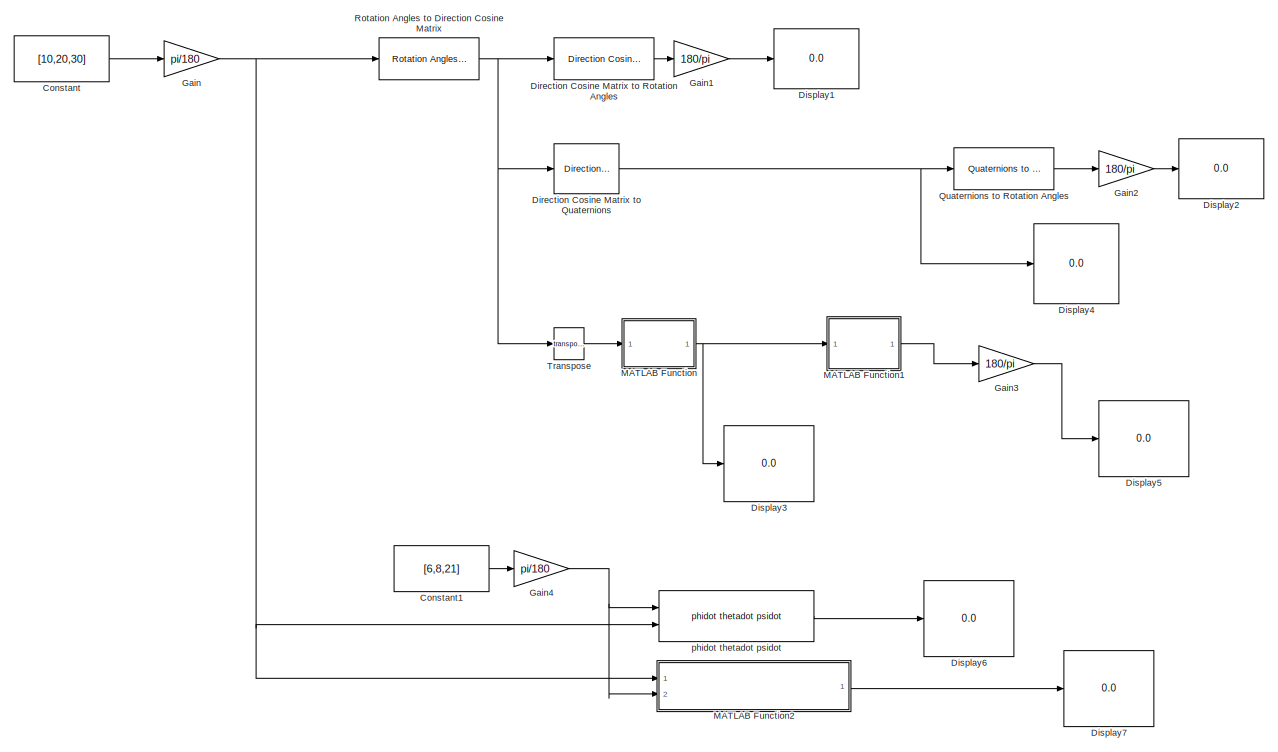
[diagram: root canvas - part 1/3, top left region]
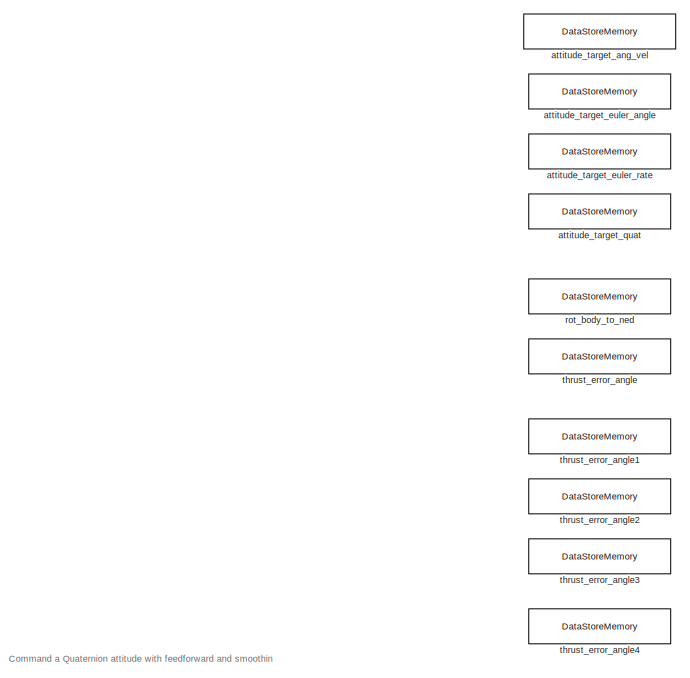
[diagram: root canvas - part 2/3, middle right region]
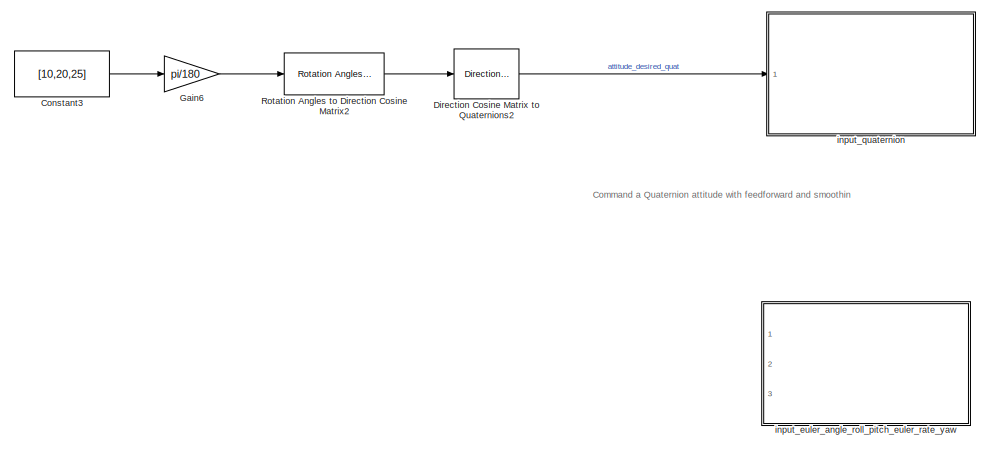
[diagram: root canvas - part 3/3, bottom center region]
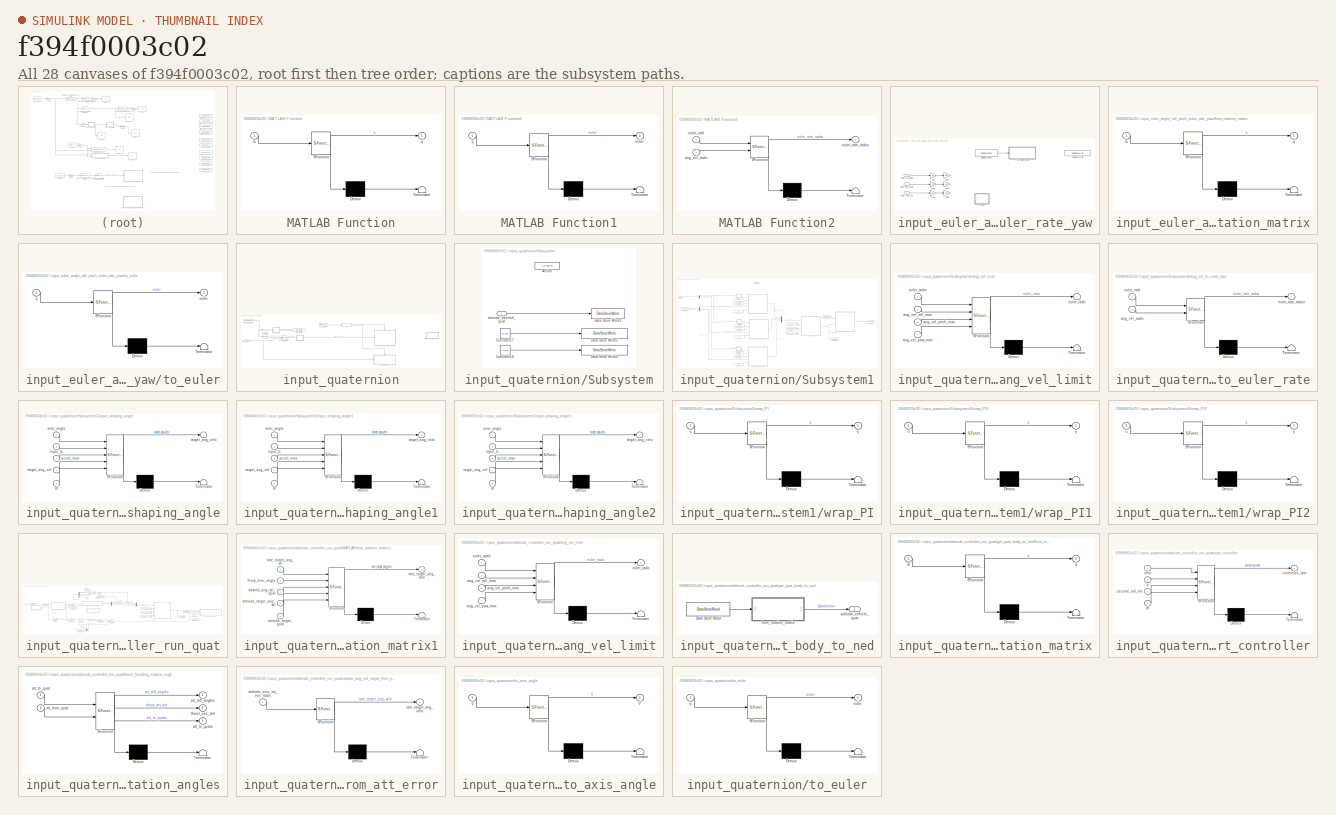
[diagram: thumbnail index - all 28 canvases of the model, root first then tree order]
MODEL slx_f394f0003c02
KIND model
CONFIG AbsTol = auto
CONFIG EnableMultiTasking = off
CONFIG FixedStep = auto
CONFIG MaxStep = auto
CONFIG MinStep = auto
CONFIG RelTol = 1e-3
CONFIG SampleTimeConstraint = Unconstrained
CONFIG Solver = VariableStepAuto
CONFIG SolverName = VariableStepAuto
CONFIG StartTime = 0.0
CONFIG StopTime = 10.0
BLOCK [Constant] Constant
  Value = [10,20,30]
BLOCK [Constant] Constant1
  Value = [6,8,21]
BLOCK [Constant] Constant3
  Value = [10,20,25]
BLOCK [Reference] Direction Cosine Matrix to Quaternions  REF=sharedtransform/Direction Cosine Matrix 
to Quaternions
  Ports = [1, 1]
  SourceBlock = sharedtransform/Direction Cosine Matrix \nto Quaternions
  SourceProductBaseCode = AE
  SourceProductName = Aerospace Blockset
  SourceType = DCM2Quaternion
BLOCK [Reference] Direction Cosine Matrix to Quaternions2  REF=sharedtransform/Direction Cosine Matrix 
to Quaternions
  Ports = [1, 1]
  SourceBlock = sharedtransform/Direction Cosine Matrix \nto Quaternions
  SourceProductBaseCode = AE
  SourceProductName = Aerospace Blockset
  SourceType = DCM2Quaternion
BLOCK [Reference] Direction Cosine Matrix to Rotation Angles  REF=sharedtransform/Direction Cosine Matrix
to Rotation Angles
  AttributesFormatString = Rotation Order: %<rotationOrder>
  Ports = [1, 1]
  SourceBlock = sharedtransform/Direction Cosine Matrix\nto Rotation Angles
  SourceProductBaseCode = AE
  SourceProductName = Aerospace Blockset
  SourceType = DCM2Ang
BLOCK [Display] Display1
  Decimation = 1
  Ports = [1]
BLOCK [Display] Display2
  Decimation = 1
  Ports = [1]
BLOCK [Display] Display3
  Decimation = 1
  Ports = [1]
BLOCK [Display] Display4
  Decimation = 1
  Ports = [1]
BLOCK [Display] Display5
  Decimation = 1
  Ports = [1]
BLOCK [Display] Display6
  Decimation = 1
  Ports = [1]
BLOCK [Display] Display7
  Decimation = 1
  Ports = [1]
BLOCK [Gain] Gain
  Gain = pi/180
  OutDataTypeStr = Inherit: Inherit via internal rule
  ParamDataTypeStr = Inherit: Inherit via internal rule
  SaturateOnIntegerOverflow = off
BLOCK [Gain] Gain1
  Gain = 180/pi
  OutDataTypeStr = Inherit: Inherit via internal rule
  ParamDataTypeStr = Inherit: Inherit via internal rule
  SaturateOnIntegerOverflow = off
BLOCK [Gain] Gain2
  Gain = 180/pi
  OutDataTypeStr = Inherit: Inherit via internal rule
  ParamDataTypeStr = Inherit: Inherit via internal rule
  SaturateOnIntegerOverflow = off
BLOCK [Gain] Gain3
  Gain = 180/pi
  OutDataTypeStr = Inherit: Inherit via internal rule
  ParamDataTypeStr = Inherit: Inherit via internal rule
  SaturateOnIntegerOverflow = off
BLOCK [Gain] Gain4
  Gain = pi/180
  OutDataTypeStr = Inherit: Inherit via internal rule
  ParamDataTypeStr = Inherit: Inherit via internal rule
  SaturateOnIntegerOverflow = off
BLOCK [Gain] Gain6
  Gain = pi/180
  OutDataTypeStr = Inherit: Inherit via internal rule
  ParamDataTypeStr = Inherit: Inherit via internal rule
  SaturateOnIntegerOverflow = off
BLOCK [SubSystem] MATLAB Function
  ErrorFcn = Stateflow.Translate.translate
  PermitHierarchicalResolution = ExplicitOnly
  Ports = [1, 1]
  RequestExecContextInheritance = off
  SFBlockType = MATLAB Function
  TreatAsAtomicUnit = on
BLOCK [Demux] MATLAB Function/ Demux 
  Outputs = 1
  Ports = [1, 1]
BLOCK [S-Function] MATLAB Function/ SFunction 
  EnableBusSupport = on
  FunctionName = sf_sfun
  PortCounts = [1 2]
  Ports = [1, 2]
  SFcnIsStateOwnerBlock = off
  SFunctionDeploymentMode = off
  Tag = Stateflow S-Function AC_AttitudeControl_sim 2
BLOCK [Terminator] MATLAB Function/ Terminator 
BLOCK [Inport] MATLAB Function/m
  IconDisplay = Port number
BLOCK [Outport] MATLAB Function/q
  IconDisplay = Port number
BLOCK [SubSystem] MATLAB Function1
  ErrorFcn = Stateflow.Translate.translate
  PermitHierarchicalResolution = ExplicitOnly
  Ports = [1, 1]
  RequestExecContextInheritance = off
  SFBlockType = MATLAB Function
  TreatAsAtomicUnit = on
BLOCK [Demux] MATLAB Function1/ Demux 
  Outputs = 1
  Ports = [1, 1]
BLOCK [S-Function] MATLAB Function1/ SFunction 
  EnableBusSupport = on
  FunctionName = sf_sfun
  PortCounts = [1 2]
  Ports = [1, 2]
  SFcnIsStateOwnerBlock = off
  SFunctionDeploymentMode = off
  Tag = Stateflow S-Function AC_AttitudeControl_sim 1
BLOCK [Terminator] MATLAB Function1/ Terminator 
BLOCK [Outport] MATLAB Function1/euler
  IconDisplay = Port number
BLOCK [Inport] MATLAB Function1/q
  IconDisplay = Port number
BLOCK [SubSystem] MATLAB Function2
  ErrorFcn = Stateflow.Translate.translate
  PermitHierarchicalResolution = ExplicitOnly
  Ports = [2, 1]
  RequestExecContextInheritance = off
  SFBlockType = MATLAB Function
  TreatAsAtomicUnit = on
BLOCK [Demux] MATLAB Function2/ Demux 
  Outputs = 1
  Ports = [1, 1]
BLOCK [S-Function] MATLAB Function2/ SFunction 
  EnableBusSupport = on
  FunctionName = sf_sfun
  PortCounts = [2 2]
  Ports = [2, 2]
  SFcnIsStateOwnerBlock = off
  SFunctionDeploymentMode = off
  Tag = Stateflow S-Function AC_AttitudeControl_sim 3
BLOCK [Terminator] MATLAB Function2/ Terminator 
BLOCK [Inport] MATLAB Function2/ang_vel_radsi
  IconDisplay = Port number
  Port = 2
BLOCK [Inport] MATLAB Function2/euler_radi
  IconDisplay = Port number
BLOCK [Outport] MATLAB Function2/euler_rate_radso
  IconDisplay = Port number
BLOCK [Reference] Quaternions to Rotation Angles  REF=sharedtransform/Quaternions to Rotation Angles
  AttributesFormatString = Rotation Order: %<rotationOrder>
  Ports = [1, 1]
  SourceBlock = sharedtransform/Quaternions to Rotation Angles
  SourceProductBaseCode = AE
  SourceProductName = Aerospace Blockset
  SourceType = Quat2Ang
BLOCK [Reference] Rotation Angles to Direction Cosine Matrix  REF=sharedtransform/Rotation Angles to
Direction Cosine Matrix
  AttributesFormatString = Rotation Order: %<rotationOrder>
  Ports = [1, 1]
  SourceBlock = sharedtransform/Rotation Angles to\nDirection Cosine Matrix
  SourceProductBaseCode = AE
  SourceProductName = Aerospace Blockset
  SourceType = Ang2DCM
BLOCK [Reference] Rotation Angles to Direction Cosine Matrix2  REF=sharedtransform/Rotation Angles to
Direction Cosine Matrix
  AttributesFormatString = Rotation Order: %<rotationOrder>
  Ports = [1, 1]
  SourceBlock = sharedtransform/Rotation Angles to\nDirection Cosine Matrix
  SourceProductBaseCode = AE
  SourceProductName = Aerospace Blockset
  SourceType = Ang2DCM
BLOCK [Math] Transpose
  Operator = transpose
  Ports = [1, 1]
BLOCK [DataStoreMemory] attitude_target_ang_vel
  DataStoreName = attitude_target_ang_vel
  InitialValue = attitude_target_ang_vel
  ReadBeforeWriteMsg = warning
  ShowAdditionalParam = off
  WriteAfterReadMsg = warning
  WriteAfterWriteMsg = warning
BLOCK [DataStoreMemory] attitude_target_euler_angle
  DataStoreName = attitude_target_euler_angle
  InitialValue = attitude_target_euler_angle
  ReadBeforeWriteMsg = warning
  ShowAdditionalParam = off
  WriteAfterReadMsg = warning
  WriteAfterWriteMsg = warning
BLOCK [DataStoreMemory] attitude_target_euler_rate
  DataStoreName = attitude_target_euler_rate
  InitialValue = attitude_target_euler_rate
  ReadBeforeWriteMsg = warning
  ShowAdditionalParam = off
  WriteAfterReadMsg = warning
  WriteAfterWriteMsg = warning
BLOCK [DataStoreMemory] attitude_target_quat
  DataStoreName = attitude_target_quat
  InitialValue = attitude_target_quat
  ReadBeforeWriteMsg = warning
  ShowAdditionalParam = off
  WriteAfterReadMsg = warning
  WriteAfterWriteMsg = warning
BLOCK [SubSystem] input_euler_angle_roll_pitch_euler_rate_yaw
  Ports = [3]
  RequestExecContextInheritance = off
BLOCK [DataStoreRead] input_euler_angle_roll_pitch_euler_rate_yaw/Data Store Read
  DataStoreName = rot_body_to_ned
  Ports = [0, 1]
BLOCK [DataStoreWrite] input_euler_angle_roll_pitch_euler_rate_yaw/Data Store Write
  DataStoreName = attitude_target_euler_angle
  Ports = [1]
BLOCK [Gain] input_euler_angle_roll_pitch_euler_rate_yaw/Gain
  Gain = HD
  OutDataTypeStr = Inherit: Inherit via internal rule
  ParamDataTypeStr = Inherit: Inherit via internal rule
  SaturateOnIntegerOverflow = off
BLOCK [Gain] input_euler_angle_roll_pitch_euler_rate_yaw/Gain1
  Gain = 0.01
  OutDataTypeStr = Inherit: Inherit via internal rule
  ParamDataTypeStr = Inherit: Inherit via internal rule
  SaturateOnIntegerOverflow = off
BLOCK [Gain] input_euler_angle_roll_pitch_euler_rate_yaw/Gain2
  Gain = HD
  OutDataTypeStr = Inherit: Inherit via internal rule
  ParamDataTypeStr = Inherit: Inherit via internal rule
  SaturateOnIntegerOverflow = off
BLOCK [Gain] input_euler_angle_roll_pitch_euler_rate_yaw/Gain3
  Gain = 0.01
  OutDataTypeStr = Inherit: Inherit via internal rule
  ParamDataTypeStr = Inherit: Inherit via internal rule
  SaturateOnIntegerOverflow = off
BLOCK [Gain] input_euler_angle_roll_pitch_euler_rate_yaw/Gain4
  Gain = HD
  OutDataTypeStr = Inherit: Inherit via internal rule
  ParamDataTypeStr = Inherit: Inherit via internal rule
  SaturateOnIntegerOverflow = off
BLOCK [Gain] input_euler_angle_roll_pitch_euler_rate_yaw/Gain5
  Gain = 0.01
  OutDataTypeStr = Inherit: Inherit via internal rule
  ParamDataTypeStr = Inherit: Inherit via internal rule
  SaturateOnIntegerOverflow = off
BLOCK [Inport] input_euler_angle_roll_pitch_euler_rate_yaw/euler_pitch_angle
  IconDisplay = Port number
  Port = 2
BLOCK [Inport] input_euler_angle_roll_pitch_euler_rate_yaw/euler_roll_angle
  IconDisplay = Port number
BLOCK [Inport] input_euler_angle_roll_pitch_euler_rate_yaw/euler_yaw_rate
  IconDisplay = Port number
  Port = 3
BLOCK [SubSystem] input_euler_angle_roll_pitch_euler_rate_yaw/from_rotation_matrix
  ErrorFcn = Stateflow.Translate.translate
  PermitHierarchicalResolution = ExplicitOnly
  Ports = [1, 1]
  RequestExecContextInheritance = off
  SFBlockType = MATLAB Function
  TreatAsAtomicUnit = on
BLOCK [Demux] input_euler_angle_roll_pitch_euler_rate_yaw/from_rotation_matrix/ Demux 
  Outputs = 1
  Ports = [1, 1]
BLOCK [S-Function] input_euler_angle_roll_pitch_euler_rate_yaw/from_rotation_matrix/ SFunction 
  EnableBusSupport = on
  FunctionName = sf_sfun
  PortCounts = [1 2]
  Ports = [1, 2]
  SFcnIsStateOwnerBlock = off
  SFunctionDeploymentMode = off
  Tag = Stateflow S-Function AC_AttitudeControl_sim 16
BLOCK [Terminator] input_euler_angle_roll_pitch_euler_rate_yaw/from_rotation_matrix/ Terminator 
BLOCK [Inport] input_euler_angle_roll_pitch_euler_rate_yaw/from_rotation_matrix/m
  IconDisplay = Port number
BLOCK [Outport] input_euler_angle_roll_pitch_euler_rate_yaw/from_rotation_matrix/q
  IconDisplay = Port number
BLOCK [SubSystem] input_euler_angle_roll_pitch_euler_rate_yaw/to_euler
  ErrorFcn = Stateflow.Translate.translate
  PermitHierarchicalResolution = ExplicitOnly
  Ports = [1, 1]
  RequestExecContextInheritance = off
  SFBlockType = MATLAB Function
  TreatAsAtomicUnit = on
BLOCK [Demux] input_euler_angle_roll_pitch_euler_rate_yaw/to_euler/ Demux 
  Outputs = 1
  Ports = [1, 1]
BLOCK [S-Function] input_euler_angle_roll_pitch_euler_rate_yaw/to_euler/ SFunction 
  EnableBusSupport = on
  FunctionName = sf_sfun
  PortCounts = [1 2]
  Ports = [1, 2]
  SFcnIsStateOwnerBlock = off
  SFunctionDeploymentMode = off
  Tag = Stateflow S-Function AC_AttitudeControl_sim 14
BLOCK [Terminator] input_euler_angle_roll_pitch_euler_rate_yaw/to_euler/ Terminator 
BLOCK [Outport] input_euler_angle_roll_pitch_euler_rate_yaw/to_euler/euler
  IconDisplay = Port number
BLOCK [Inport] input_euler_angle_roll_pitch_euler_rate_yaw/to_euler/q
  IconDisplay = Port number
BLOCK [SubSystem] input_quaternion
  Ports = [1]
  RequestExecContextInheritance = off
BLOCK [Constant] input_quaternion/Constant4
  Value = rate_bf_ff_enabled
BLOCK [DataStoreRead] input_quaternion/Data Store Read1
  DataStoreName = attitude_target_quat
  Ports = [0, 1]
BLOCK [DataStoreWrite] input_quaternion/Data Store Write
  DataStoreName = attitude_target_euler_angle
  Ports = [1]
BLOCK [If] input_quaternion/If
  IfExpression = u1 ==1
  Ports = [1, 2]
BLOCK [Reference] input_quaternion/Quaternion Conjugate  REF=aerolibutil/Quaternion
Conjugate
  Ports = [1, 1]
  SourceBlock = aerolibutil/Quaternion\nConjugate
  SourceProductBaseCode = AE
  SourceProductName = Aerospace Blockset
  SourceType = Quaternion Conjugate
BLOCK [Reference] input_quaternion/Quaternion Multiplication  REF=aerolibutil/Quaternion
Multiplication
  Ports = [2, 1]
  SourceBlock = aerolibutil/Quaternion\nMultiplication
  SourceProductBaseCode = AE
  SourceProductName = Aerospace Blockset
  SourceType = Quaternion Multiplication
BLOCK [SubSystem] input_quaternion/Subsystem
  Ports = [1, 0, 0, 0, 0, 0, 0, 1]
  RequestExecContextInheritance = off
BLOCK [ActionPort] input_quaternion/Subsystem/Action
  ActionType = else
BLOCK [Constant] input_quaternion/Subsystem/Constant17
  Value = [0 0 0]
BLOCK [Constant] input_quaternion/Subsystem/Constant18
  Value = [0 0 0]
BLOCK [DataStoreWrite] input_quaternion/Subsystem/Data Store Write3
  DataStoreName = attitude_target_quat
  Ports = [1]
BLOCK [DataStoreWrite] input_quaternion/Subsystem/Data Store Write4
  DataStoreName = attitude_target_euler_rate
  Ports = [1]
BLOCK [DataStoreWrite] input_quaternion/Subsystem/Data Store Write5
  DataStoreName = attitude_target_ang_vel
  Ports = [1]
BLOCK [Inport] input_quaternion/Subsystem/attitude_desired_quat
  IconDisplay = Port number
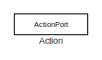
[diagram: input_quaternion/Subsystem1 - part 1/4, top center region]
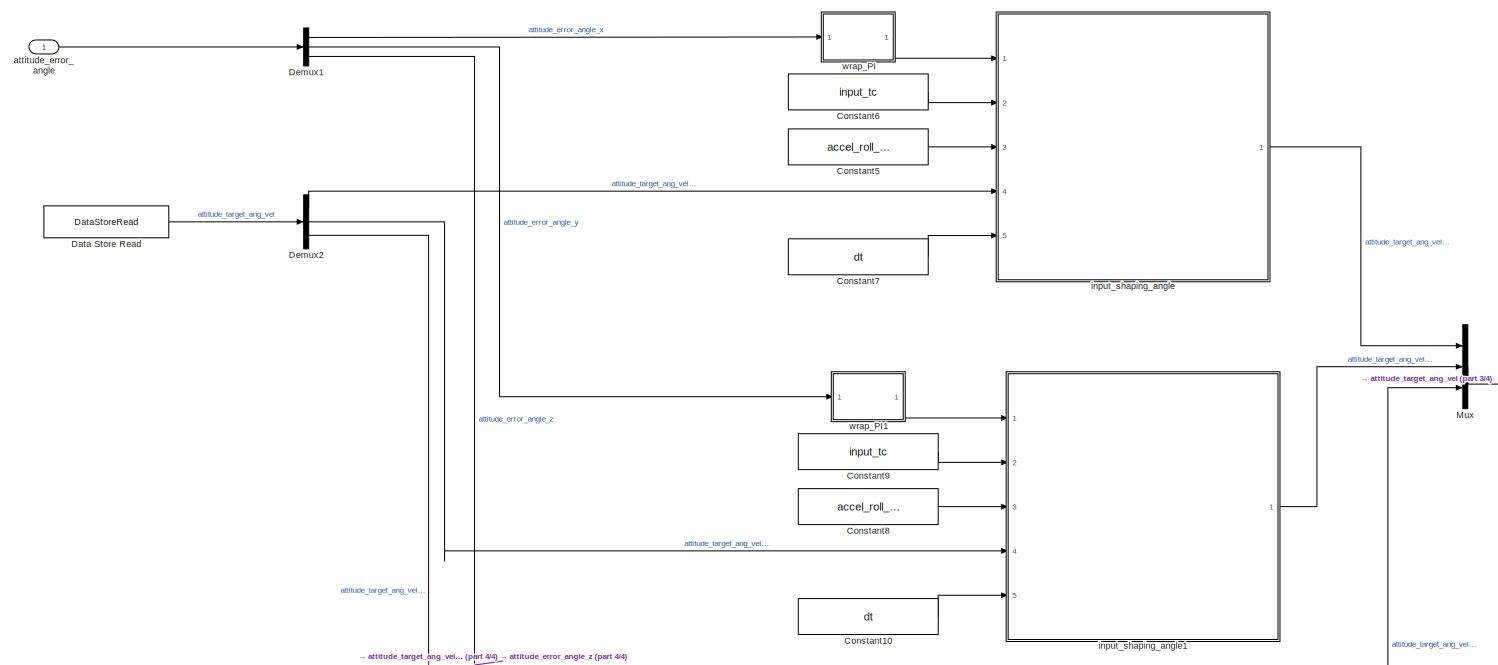
[diagram: input_quaternion/Subsystem1 - part 2/4, middle left region]
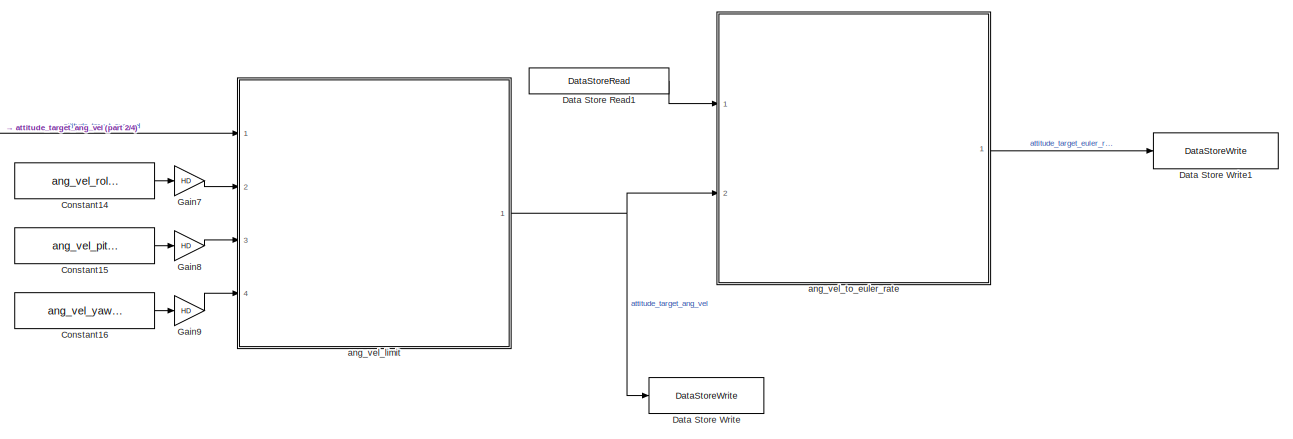
[diagram: input_quaternion/Subsystem1 - part 3/4, middle right region]
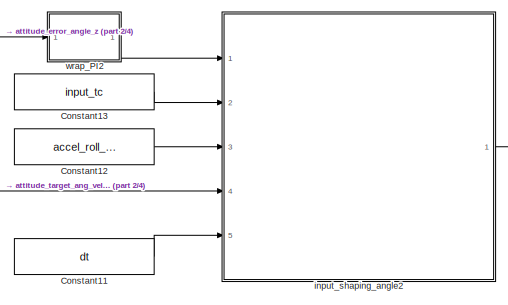
[diagram: input_quaternion/Subsystem1 - part 4/4, bottom center region]
BLOCK [SubSystem] input_quaternion/Subsystem1
  Ports = [1, 0, 0, 0, 0, 0, 0, 1]
  RequestExecContextInheritance = off
BLOCK [ActionPort] input_quaternion/Subsystem1/Action
  ActionType = then
BLOCK [Constant] input_quaternion/Subsystem1/Constant10
  Value = dt
BLOCK [Constant] input_quaternion/Subsystem1/Constant11
  Value = dt
BLOCK [Constant] input_quaternion/Subsystem1/Constant12
  Value = accel_roll_max*0.01
BLOCK [Constant] input_quaternion/Subsystem1/Constant13
  Value = input_tc
BLOCK [Constant] input_quaternion/Subsystem1/Constant14
  Value = ang_vel_roll_max
BLOCK [Constant] input_quaternion/Subsystem1/Constant15
  Value = ang_vel_pitch_max
BLOCK [Constant] input_quaternion/Subsystem1/Constant16
  Value = ang_vel_yaw_max
BLOCK [Constant] input_quaternion/Subsystem1/Constant5
  Value = accel_roll_max*0.01
BLOCK [Constant] input_quaternion/Subsystem1/Constant6
  Value = input_tc
BLOCK [Constant] input_quaternion/Subsystem1/Constant7
  Value = dt
BLOCK [Constant] input_quaternion/Subsystem1/Constant8
  Value = accel_roll_max*0.01
BLOCK [Constant] input_quaternion/Subsystem1/Constant9
  Value = input_tc
BLOCK [DataStoreRead] input_quaternion/Subsystem1/Data Store Read
  DataStoreName = attitude_target_ang_vel
  Ports = [0, 1]
BLOCK [DataStoreRead] input_quaternion/Subsystem1/Data Store Read1
  DataStoreName = attitude_target_euler_angle
  Ports = [0, 1]
BLOCK [DataStoreWrite] input_quaternion/Subsystem1/Data Store Write
  DataStoreName = attitude_target_ang_vel
  Ports = [1]
BLOCK [DataStoreWrite] input_quaternion/Subsystem1/Data Store Write1
  DataStoreName = attitude_target_euler_rate
  Ports = [1]
BLOCK [Demux] input_quaternion/Subsystem1/Demux1
  DisplayOption = bar
  Outputs = 3
  Ports = [1, 3]
BLOCK [Demux] input_quaternion/Subsystem1/Demux2
  DisplayOption = bar
  Outputs = 3
  Ports = [1, 3]
BLOCK [Gain] input_quaternion/Subsystem1/Gain7
  Gain = HD
  OutDataTypeStr = Inherit: Inherit via internal rule
  ParamDataTypeStr = Inherit: Inherit via internal rule
  SaturateOnIntegerOverflow = off
BLOCK [Gain] input_quaternion/Subsystem1/Gain8
  Gain = HD
  OutDataTypeStr = Inherit: Inherit via internal rule
  ParamDataTypeStr = Inherit: Inherit via internal rule
  SaturateOnIntegerOverflow = off
BLOCK [Gain] input_quaternion/Subsystem1/Gain9
  Gain = HD
  OutDataTypeStr = Inherit: Inherit via internal rule
  ParamDataTypeStr = Inherit: Inherit via internal rule
  SaturateOnIntegerOverflow = off
BLOCK [Mux] input_quaternion/Subsystem1/Mux
  DisplayOption = bar
  Inputs = 3
  Ports = [3, 1]
BLOCK [SubSystem] input_quaternion/Subsystem1/ang_vel_limit
  ErrorFcn = Stateflow.Translate.translate
  PermitHierarchicalResolution = ExplicitOnly
  Ports = [4, 1]
  RequestExecContextInheritance = off
  SFBlockType = MATLAB Function
  TreatAsAtomicUnit = on
BLOCK [Demux] input_quaternion/Subsystem1/ang_vel_limit/ Demux 
  Outputs = 1
  Ports = [1, 1]
BLOCK [S-Function] input_quaternion/Subsystem1/ang_vel_limit/ SFunction 
  EnableBusSupport = on
  FunctionName = sf_sfun
  PortCounts = [4 2]
  Ports = [4, 2]
  SFcnIsStateOwnerBlock = off
  SFunctionDeploymentMode = off
  Tag = Stateflow S-Function AC_AttitudeControl_sim 12
BLOCK [Terminator] input_quaternion/Subsystem1/ang_vel_limit/ Terminator 
BLOCK [Inport] input_quaternion/Subsystem1/ang_vel_limit/ang_vel_pitch_max
  IconDisplay = Port number
  Port = 3
BLOCK [Inport] input_quaternion/Subsystem1/ang_vel_limit/ang_vel_roll_max
  IconDisplay = Port number
  Port = 2
BLOCK [Inport] input_quaternion/Subsystem1/ang_vel_limit/ang_vel_yaw_max
  IconDisplay = Port number
  Port = 4
BLOCK [Inport] input_quaternion/Subsystem1/ang_vel_limit/euler_radin
  IconDisplay = Port number
BLOCK [Outport] input_quaternion/Subsystem1/ang_vel_limit/euler_rado
  IconDisplay = Port number
BLOCK [SubSystem] input_quaternion/Subsystem1/ang_vel_to_euler_rate
  ErrorFcn = Stateflow.Translate.translate
  PermitHierarchicalResolution = ExplicitOnly
  Ports = [2, 1]
  RequestExecContextInheritance = off
  SFBlockType = MATLAB Function
  TreatAsAtomicUnit = on
BLOCK [Demux] input_quaternion/Subsystem1/ang_vel_to_euler_rate/ Demux 
  Outputs = 1
  Ports = [1, 1]
BLOCK [S-Function] input_quaternion/Subsystem1/ang_vel_to_euler_rate/ SFunction 
  EnableBusSupport = on
  FunctionName = sf_sfun
  PortCounts = [2 2]
  Ports = [2, 2]
  SFcnIsStateOwnerBlock = off
  SFunctionDeploymentMode = off
  Tag = Stateflow S-Function AC_AttitudeControl_sim 13
BLOCK [Terminator] input_quaternion/Subsystem1/ang_vel_to_euler_rate/ Terminator 
BLOCK [Inport] input_quaternion/Subsystem1/ang_vel_to_euler_rate/ang_vel_radsi
  IconDisplay = Port number
  Port = 2
BLOCK [Inport] input_quaternion/Subsystem1/ang_vel_to_euler_rate/euler_radi
  IconDisplay = Port number
BLOCK [Outport] input_quaternion/Subsystem1/ang_vel_to_euler_rate/euler_rate_radso
  IconDisplay = Port number
BLOCK [Inport] input_quaternion/Subsystem1/attitude_error_angle
  IconDisplay = Port number
BLOCK [SubSystem] input_quaternion/Subsystem1/input_shaping_angle
  ErrorFcn = Stateflow.Translate.translate
  PermitHierarchicalResolution = ExplicitOnly
  Ports = [5, 1]
  RequestExecContextInheritance = off
  SFBlockType = MATLAB Function
  TreatAsAtomicUnit = on
BLOCK [Demux] input_quaternion/Subsystem1/input_shaping_angle/ Demux 
  Outputs = 1
  Ports = [1, 1]
BLOCK [S-Function] input_quaternion/Subsystem1/input_shaping_angle/ SFunction 
  EnableBusSupport = on
  FunctionName = sf_sfun
  PortCounts = [5 2]
  Ports = [5, 2]
  SFcnIsStateOwnerBlock = off
  SFunctionDeploymentMode = off
  Tag = Stateflow S-Function AC_AttitudeControl_sim 6
BLOCK [Terminator] input_quaternion/Subsystem1/input_shaping_angle/ Terminator 
BLOCK [Inport] input_quaternion/Subsystem1/input_shaping_angle/accel_max
  IconDisplay = Port number
  Port = 3
BLOCK [Inport] input_quaternion/Subsystem1/input_shaping_angle/dt
  IconDisplay = Port number
  Port = 5
BLOCK [Inport] input_quaternion/Subsystem1/input_shaping_angle/error_angle
  IconDisplay = Port number
BLOCK [Inport] input_quaternion/Subsystem1/input_shaping_angle/input_tc
  IconDisplay = Port number
  Port = 2
BLOCK [Inport] input_quaternion/Subsystem1/input_shaping_angle/target_ang_vel
  IconDisplay = Port number
  Port = 4
BLOCK [Outport] input_quaternion/Subsystem1/input_shaping_angle/target_ang_velo
  IconDisplay = Port number
BLOCK [SubSystem] input_quaternion/Subsystem1/input_shaping_angle1
  ErrorFcn = Stateflow.Translate.translate
  PermitHierarchicalResolution = ExplicitOnly
  Ports = [5, 1]
  RequestExecContextInheritance = off
  SFBlockType = MATLAB Function
  TreatAsAtomicUnit = on
BLOCK [Demux] input_quaternion/Subsystem1/input_shaping_angle1/ Demux 
  Outputs = 1
  Ports = [1, 1]
BLOCK [S-Function] input_quaternion/Subsystem1/input_shaping_angle1/ SFunction 
  EnableBusSupport = on
  FunctionName = sf_sfun
  PortCounts = [5 2]
  Ports = [5, 2]
  SFcnIsStateOwnerBlock = off
  SFunctionDeploymentMode = off
  Tag = Stateflow S-Function AC_AttitudeControl_sim 8
BLOCK [Terminator] input_quaternion/Subsystem1/input_shaping_angle1/ Terminator 
BLOCK [Inport] input_quaternion/Subsystem1/input_shaping_angle1/accel_max
  IconDisplay = Port number
  Port = 3
BLOCK [Inport] input_quaternion/Subsystem1/input_shaping_angle1/dt
  IconDisplay = Port number
  Port = 5
BLOCK [Inport] input_quaternion/Subsystem1/input_shaping_angle1/error_angle
  IconDisplay = Port number
BLOCK [Inport] input_quaternion/Subsystem1/input_shaping_angle1/input_tc
  IconDisplay = Port number
  Port = 2
BLOCK [Inport] input_quaternion/Subsystem1/input_shaping_angle1/target_ang_vel
  IconDisplay = Port number
  Port = 4
BLOCK [Outport] input_quaternion/Subsystem1/input_shaping_angle1/target_ang_velo
  IconDisplay = Port number
BLOCK [SubSystem] input_quaternion/Subsystem1/input_shaping_angle2
  ErrorFcn = Stateflow.Translate.translate
  PermitHierarchicalResolution = ExplicitOnly
  Ports = [5, 1]
  RequestExecContextInheritance = off
  SFBlockType = MATLAB Function
  TreatAsAtomicUnit = on
BLOCK [Demux] input_quaternion/Subsystem1/input_shaping_angle2/ Demux 
  Outputs = 1
  Ports = [1, 1]
BLOCK [S-Function] input_quaternion/Subsystem1/input_shaping_angle2/ SFunction 
  EnableBusSupport = on
  FunctionName = sf_sfun
  PortCounts = [5 2]
  Ports = [5, 2]
  SFcnIsStateOwnerBlock = off
  SFunctionDeploymentMode = off
  Tag = Stateflow S-Function AC_AttitudeControl_sim 10
BLOCK [Terminator] input_quaternion/Subsystem1/input_shaping_angle2/ Terminator 
BLOCK [Inport] input_quaternion/Subsystem1/input_shaping_angle2/accel_max
  IconDisplay = Port number
  Port = 3
BLOCK [Inport] input_quaternion/Subsystem1/input_shaping_angle2/dt
  IconDisplay = Port number
  Port = 5
BLOCK [Inport] input_quaternion/Subsystem1/input_shaping_angle2/error_angle
  IconDisplay = Port number
BLOCK [Inport] input_quaternion/Subsystem1/input_shaping_angle2/input_tc
  IconDisplay = Port number
  Port = 2
BLOCK [Inport] input_quaternion/Subsystem1/input_shaping_angle2/target_ang_vel
  IconDisplay = Port number
  Port = 4
BLOCK [Outport] input_quaternion/Subsystem1/input_shaping_angle2/target_ang_velo
  IconDisplay = Port number
BLOCK [SubSystem] input_quaternion/Subsystem1/wrap_PI
  ErrorFcn = Stateflow.Translate.translate
  PermitHierarchicalResolution = ExplicitOnly
  Ports = [1, 1]
  RequestExecContextInheritance = off
  SFBlockType = MATLAB Function
  TreatAsAtomicUnit = on
BLOCK [Demux] input_quaternion/Subsystem1/wrap_PI/ Demux 
  Outputs = 1
  Ports = [1, 1]
BLOCK [S-Function] input_quaternion/Subsystem1/wrap_PI/ SFunction 
  EnableBusSupport = on
  FunctionName = sf_sfun
  PortCounts = [1 2]
  Ports = [1, 2]
  SFcnIsStateOwnerBlock = off
  SFunctionDeploymentMode = off
  Tag = Stateflow S-Function AC_AttitudeControl_sim 7
BLOCK [Terminator] input_quaternion/Subsystem1/wrap_PI/ Terminator 
BLOCK [Inport] input_quaternion/Subsystem1/wrap_PI/u
  IconDisplay = Port number
BLOCK [Outport] input_quaternion/Subsystem1/wrap_PI/y
  IconDisplay = Port number
BLOCK [SubSystem] input_quaternion/Subsystem1/wrap_PI1
  ErrorFcn = Stateflow.Translate.translate
  PermitHierarchicalResolution = ExplicitOnly
  Ports = [1, 1]
  RequestExecContextInheritance = off
  SFBlockType = MATLAB Function
  TreatAsAtomicUnit = on
BLOCK [Demux] input_quaternion/Subsystem1/wrap_PI1/ Demux 
  Outputs = 1
  Ports = [1, 1]
BLOCK [S-Function] input_quaternion/Subsystem1/wrap_PI1/ SFunction 
  EnableBusSupport = on
  FunctionName = sf_sfun
  PortCounts = [1 2]
  Ports = [1, 2]
  SFcnIsStateOwnerBlock = off
  SFunctionDeploymentMode = off
  Tag = Stateflow S-Function AC_AttitudeControl_sim 9
BLOCK [Terminator] input_quaternion/Subsystem1/wrap_PI1/ Terminator 
BLOCK [Inport] input_quaternion/Subsystem1/wrap_PI1/u
  IconDisplay = Port number
BLOCK [Outport] input_quaternion/Subsystem1/wrap_PI1/y
  IconDisplay = Port number
BLOCK [SubSystem] input_quaternion/Subsystem1/wrap_PI2
  ErrorFcn = Stateflow.Translate.translate
  PermitHierarchicalResolution = ExplicitOnly
  Ports = [1, 1]
  RequestExecContextInheritance = off
  SFBlockType = MATLAB Function
  TreatAsAtomicUnit = on
BLOCK [Demux] input_quaternion/Subsystem1/wrap_PI2/ Demux 
  Outputs = 1
  Ports = [1, 1]
BLOCK [S-Function] input_quaternion/Subsystem1/wrap_PI2/ SFunction 
  EnableBusSupport = on
  FunctionName = sf_sfun
  PortCounts = [1 2]
  Ports = [1, 2]
  SFcnIsStateOwnerBlock = off
  SFunctionDeploymentMode = off
  Tag = Stateflow S-Function AC_AttitudeControl_sim 11
BLOCK [Terminator] input_quaternion/Subsystem1/wrap_PI2/ Terminator 
BLOCK [Inport] input_quaternion/Subsystem1/wrap_PI2/u
  IconDisplay = Port number
BLOCK [Outport] input_quaternion/Subsystem1/wrap_PI2/y
  IconDisplay = Port number
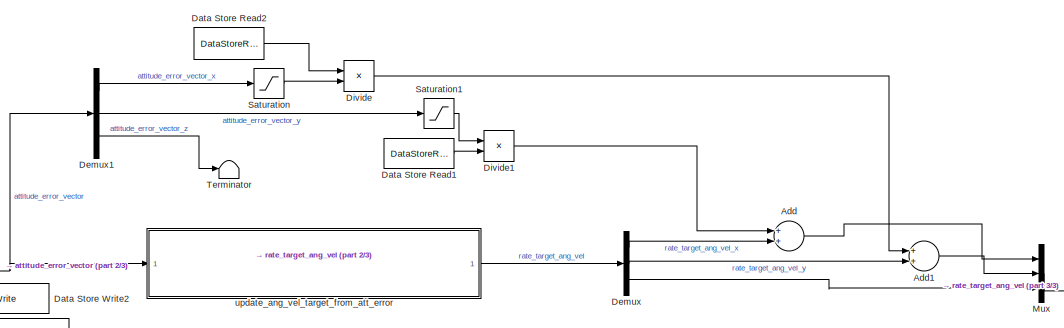
[diagram: input_quaternion/attitude_controller_run_quat - part 1/3, top center region]
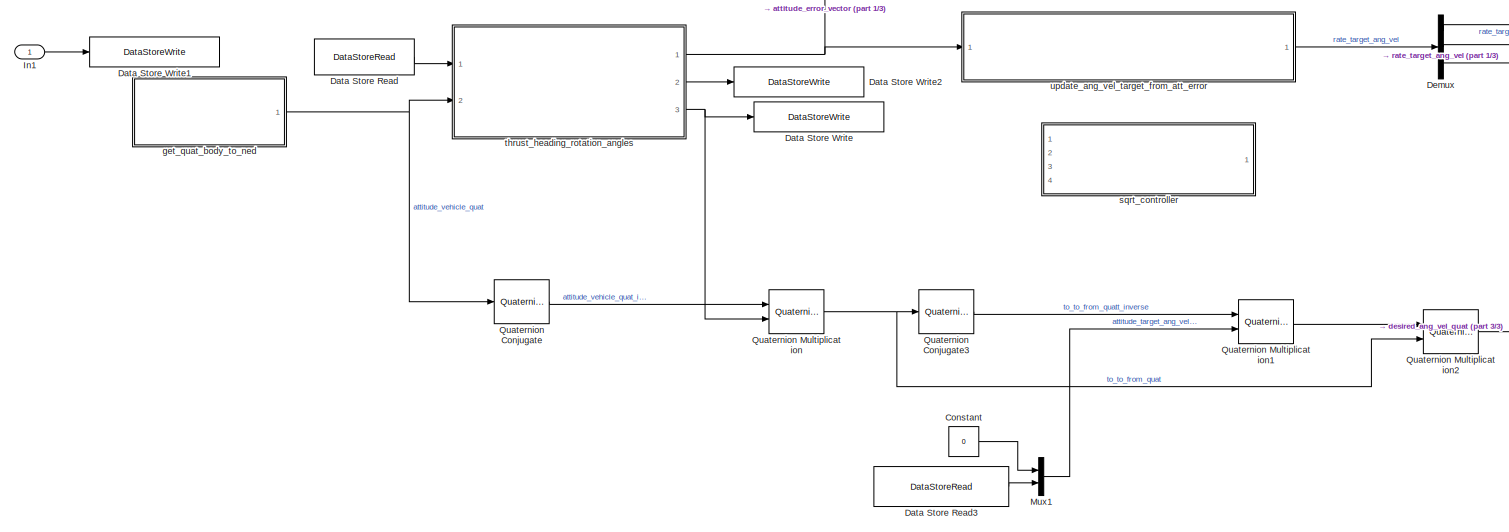
[diagram: input_quaternion/attitude_controller_run_quat - part 2/3, middle left region]
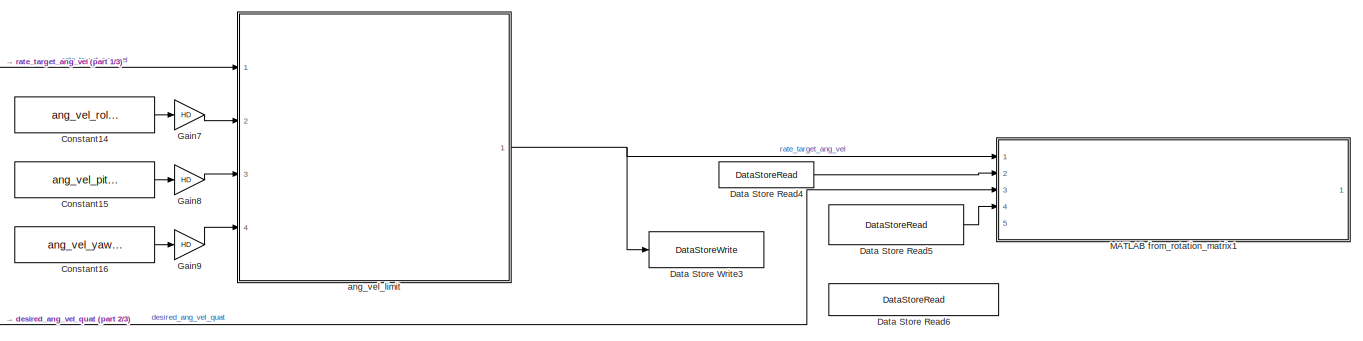
[diagram: input_quaternion/attitude_controller_run_quat - part 3/3, middle right region]
BLOCK [SubSystem] input_quaternion/attitude_controller_run_quat
  Ports = [1]
  RequestExecContextInheritance = off
BLOCK [Sum] input_quaternion/attitude_controller_run_quat/Add
  InputSameDT = off
  OutDataTypeStr = Inherit: Inherit via internal rule
  Ports = [2, 1]
  SaturateOnIntegerOverflow = off
BLOCK [Sum] input_quaternion/attitude_controller_run_quat/Add1
  InputSameDT = off
  OutDataTypeStr = Inherit: Inherit via internal rule
  Ports = [2, 1]
  SaturateOnIntegerOverflow = off
BLOCK [Constant] input_quaternion/attitude_controller_run_quat/Constant
  Value = 0
BLOCK [Constant] input_quaternion/attitude_controller_run_quat/Constant14
  Value = ang_vel_roll_max
BLOCK [Constant] input_quaternion/attitude_controller_run_quat/Constant15
  Value = ang_vel_pitch_max
BLOCK [Constant] input_quaternion/attitude_controller_run_quat/Constant16
  Value = ang_vel_yaw_max
BLOCK [DataStoreRead] input_quaternion/attitude_controller_run_quat/Data Store Read
  DataStoreName = attitude_target_quat
  Ports = [0, 1]
BLOCK [DataStoreRead] input_quaternion/attitude_controller_run_quat/Data Store Read1
  DataStoreName = gyro_z
  Ports = [0, 1]
BLOCK [DataStoreRead] input_quaternion/attitude_controller_run_quat/Data Store Read2
  DataStoreName = gyro_z
  Ports = [0, 1]
BLOCK [DataStoreRead] input_quaternion/attitude_controller_run_quat/Data Store Read3
  DataStoreName = attitude_target_ang_vel
  Ports = [0, 1]
BLOCK [DataStoreRead] input_quaternion/attitude_controller_run_quat/Data Store Read4
  DataStoreName = thrust_error_angle
  Ports = [0, 1]
BLOCK [DataStoreRead] input_quaternion/attitude_controller_run_quat/Data Store Read5
  DataStoreName = attitude_target_ang_vel
  Ports = [0, 1]
BLOCK [DataStoreRead] input_quaternion/attitude_controller_run_quat/Data Store Read6
  DataStoreName = attitude_target_quat
  Ports = [0, 1]
BLOCK [DataStoreWrite] input_quaternion/attitude_controller_run_quat/Data Store Write
  DataStoreName = attitude_target_quat
  Ports = [1]
BLOCK [DataStoreWrite] input_quaternion/attitude_controller_run_quat/Data Store Write1
  DataStoreName = attitude_target_euler_angle
  Ports = [1]
BLOCK [DataStoreWrite] input_quaternion/attitude_controller_run_quat/Data Store Write2
  DataStoreName = thrust_error_angle
  Ports = [1]
BLOCK [DataStoreWrite] input_quaternion/attitude_controller_run_quat/Data Store Write3
  DataStoreName = rate_target_ang_vel
  Ports = [1]
BLOCK [Demux] input_quaternion/attitude_controller_run_quat/Demux
  DisplayOption = bar
  Outputs = 3
  Ports = [1, 3]
BLOCK [Demux] input_quaternion/attitude_controller_run_quat/Demux1
  DisplayOption = bar
  Outputs = 3
  Ports = [1, 3]
BLOCK [Product] input_quaternion/attitude_controller_run_quat/Divide
  InputSameDT = off
  Inputs = **
  OutDataTypeStr = Inherit: Inherit via internal rule
  Ports = [2, 1]
  RndMeth = Floor
  SaturateOnIntegerOverflow = off
BLOCK [Product] input_quaternion/attitude_controller_run_quat/Divide1
  InputSameDT = off
  Inputs = **
  OutDataTypeStr = Inherit: Inherit via internal rule
  Ports = [2, 1]
  RndMeth = Floor
  SaturateOnIntegerOverflow = off
BLOCK [Gain] input_quaternion/attitude_controller_run_quat/Gain7
  Gain = HD
  OutDataTypeStr = Inherit: Inherit via internal rule
  ParamDataTypeStr = Inherit: Inherit via internal rule
  SaturateOnIntegerOverflow = off
BLOCK [Gain] input_quaternion/attitude_controller_run_quat/Gain8
  Gain = HD
  OutDataTypeStr = Inherit: Inherit via internal rule
  ParamDataTypeStr = Inherit: Inherit via internal rule
  SaturateOnIntegerOverflow = off
BLOCK [Gain] input_quaternion/attitude_controller_run_quat/Gain9
  Gain = HD
  OutDataTypeStr = Inherit: Inherit via internal rule
  ParamDataTypeStr = Inherit: Inherit via internal rule
  SaturateOnIntegerOverflow = off
BLOCK [Inport] input_quaternion/attitude_controller_run_quat/In1
  IconDisplay = Port number
BLOCK [SubSystem] input_quaternion/attitude_controller_run_quat/MATLAB from_rotation_matrix1
  ErrorFcn = Stateflow.Translate.translate
  PermitHierarchicalResolution = ExplicitOnly
  Ports = [5, 1]
  RequestExecContextInheritance = off
  SFBlockType = MATLAB Function
  TreatAsAtomicUnit = on
BLOCK [Demux] input_quaternion/attitude_controller_run_quat/MATLAB from_rotation_matrix1/ Demux 
  Outputs = 1
  Ports = [1, 1]
BLOCK [S-Function] input_quaternion/attitude_controller_run_quat/MATLAB from_rotation_matrix1/ SFunction 
  EnableBusSupport = on
  FunctionName = sf_sfun
  PortCounts = [5 2]
  Ports = [5, 2]
  SFcnIsStateOwnerBlock = off
  SFunctionDeploymentMode = off
  Tag = Stateflow S-Function AC_AttitudeControl_sim 18
BLOCK [Terminator] input_quaternion/attitude_controller_run_quat/MATLAB from_rotation_matrix1/ Terminator 
BLOCK [Inport] input_quaternion/attitude_controller_run_quat/MATLAB from_rotation_matrix1/attitude_target_ang_vel
  IconDisplay = Port number
  Port = 4
BLOCK [Inport] input_quaternion/attitude_controller_run_quat/MATLAB from_rotation_matrix1/attitude_target_quat
  IconDisplay = Port number
  Port = 5
BLOCK [Inport] input_quaternion/attitude_controller_run_quat/MATLAB from_rotation_matrix1/desired_ang_vel_quat
  IconDisplay = Port number
  Port = 3
BLOCK [Inport] input_quaternion/attitude_controller_run_quat/MATLAB from_rotation_matrix1/rate_target_ang_vel
  IconDisplay = Port number
BLOCK [Outport] input_quaternion/attitude_controller_run_quat/MATLAB from_rotation_matrix1/rate_target_ang_velo
  IconDisplay = Port number
BLOCK [Inport] input_quaternion/attitude_controller_run_quat/MATLAB from_rotation_matrix1/thrust_error_angle
  IconDisplay = Port number
  Port = 2
BLOCK [Mux] input_quaternion/attitude_controller_run_quat/Mux
  DisplayOption = bar
  Inputs = 3
  Ports = [3, 1]
BLOCK [Mux] input_quaternion/attitude_controller_run_quat/Mux1
  DisplayOption = bar
  Inputs = 2
  Ports = [2, 1]
BLOCK [Reference] input_quaternion/attitude_controller_run_quat/Quaternion Conjugate  REF=aerolibutil/Quaternion
Conjugate
  Ports = [1, 1]
  SourceBlock = aerolibutil/Quaternion\nConjugate
  SourceProductBaseCode = AE
  SourceProductName = Aerospace Blockset
  SourceType = Quaternion Conjugate
BLOCK [Reference] input_quaternion/attitude_controller_run_quat/Quaternion Conjugate3  REF=aerolibutil/Quaternion
Conjugate
  Ports = [1, 1]
  SourceBlock = aerolibutil/Quaternion\nConjugate
  SourceProductBaseCode = AE
  SourceProductName = Aerospace Blockset
  SourceType = Quaternion Conjugate
BLOCK [Reference] input_quaternion/attitude_controller_run_quat/Quaternion Multiplication  REF=aerolibutil/Quaternion
Multiplication
  Ports = [2, 1]
  SourceBlock = aerolibutil/Quaternion\nMultiplication
  SourceProductBaseCode = AE
  SourceProductName = Aerospace Blockset
  SourceType = Quaternion Multiplication
BLOCK [Reference] input_quaternion/attitude_controller_run_quat/Quaternion Multiplication1  REF=aerolibutil/Quaternion
Multiplication
  Ports = [2, 1]
  SourceBlock = aerolibutil/Quaternion\nMultiplication
  SourceProductBaseCode = AE
  SourceProductName = Aerospace Blockset
  SourceType = Quaternion Multiplication
BLOCK [Reference] input_quaternion/attitude_controller_run_quat/Quaternion Multiplication2  REF=aerolibutil/Quaternion
Multiplication
  Ports = [2, 1]
  SourceBlock = aerolibutil/Quaternion\nMultiplication
  SourceProductBaseCode = AE
  SourceProductName = Aerospace Blockset
  SourceType = Quaternion Multiplication
BLOCK [Saturate] input_quaternion/attitude_controller_run_quat/Saturation
  InputPortMap = u0
  LowerLimit = -pi/4
  Ports = [1, 1]
  UpperLimit = pi/4
BLOCK [Saturate] input_quaternion/attitude_controller_run_quat/Saturation1
  InputPortMap = u0
  LowerLimit = -pi/4
  Ports = [1, 1]
  UpperLimit = pi/4
BLOCK [Terminator] input_quaternion/attitude_controller_run_quat/Terminator
BLOCK [SubSystem] input_quaternion/attitude_controller_run_quat/ang_vel_limit
  ErrorFcn = Stateflow.Translate.translate
  PermitHierarchicalResolution = ExplicitOnly
  Ports = [4, 1]
  RequestExecContextInheritance = off
  SFBlockType = MATLAB Function
  TreatAsAtomicUnit = on
BLOCK [Demux] input_quaternion/attitude_controller_run_quat/ang_vel_limit/ Demux 
  Outputs = 1
  Ports = [1, 1]
BLOCK [S-Function] input_quaternion/attitude_controller_run_quat/ang_vel_limit/ SFunction 
  EnableBusSupport = on
  FunctionName = sf_sfun
  PortCounts = [4 2]
  Ports = [4, 2]
  SFcnIsStateOwnerBlock = off
  SFunctionDeploymentMode = off
  Tag = Stateflow S-Function AC_AttitudeControl_sim 22
BLOCK [Terminator] input_quaternion/attitude_controller_run_quat/ang_vel_limit/ Terminator 
BLOCK [Inport] input_quaternion/attitude_controller_run_quat/ang_vel_limit/ang_vel_pitch_max
  IconDisplay = Port number
  Port = 3
BLOCK [Inport] input_quaternion/attitude_controller_run_quat/ang_vel_limit/ang_vel_roll_max
  IconDisplay = Port number
  Port = 2
BLOCK [Inport] input_quaternion/attitude_controller_run_quat/ang_vel_limit/ang_vel_yaw_max
  IconDisplay = Port number
  Port = 4
BLOCK [Inport] input_quaternion/attitude_controller_run_quat/ang_vel_limit/euler_radin
  IconDisplay = Port number
BLOCK [Outport] input_quaternion/attitude_controller_run_quat/ang_vel_limit/euler_rado
  IconDisplay = Port number
BLOCK [SubSystem] input_quaternion/attitude_controller_run_quat/get_quat_body_to_ned
  Ports = [0, 1]
  RequestExecContextInheritance = off
BLOCK [DataStoreRead] input_quaternion/attitude_controller_run_quat/get_quat_body_to_ned/Data Store Read
  DataStoreName = rot_body_to_ned
  Ports = [0, 1]
BLOCK [Outport] input_quaternion/attitude_controller_run_quat/get_quat_body_to_ned/attitude_vehicle_quat
  IconDisplay = Port number
BLOCK [SubSystem] input_quaternion/attitude_controller_run_quat/get_quat_body_to_ned/from_rotation_matrix
  ErrorFcn = Stateflow.Translate.translate
  PermitHierarchicalResolution = ExplicitOnly
  Ports = [1, 1]
  RequestExecContextInheritance = off
  SFBlockType = MATLAB Function
  TreatAsAtomicUnit = on
BLOCK [Demux] input_quaternion/attitude_controller_run_quat/get_quat_body_to_ned/from_rotation_matrix/ Demux 
  Outputs = 1
  Ports = [1, 1]
BLOCK [S-Function] input_quaternion/attitude_controller_run_quat/get_quat_body_to_ned/from_rotation_matrix/ SFunction 
  EnableBusSupport = on
  FunctionName = sf_sfun
  PortCounts = [1 2]
  Ports = [1, 2]
  SFcnIsStateOwnerBlock = off
  SFunctionDeploymentMode = off
  Tag = Stateflow S-Function AC_AttitudeControl_sim 17
BLOCK [Terminator] input_quaternion/attitude_controller_run_quat/get_quat_body_to_ned/from_rotation_matrix/ Terminator 
BLOCK [Inport] input_quaternion/attitude_controller_run_quat/get_quat_body_to_ned/from_rotation_matrix/m
  IconDisplay = Port number
BLOCK [Outport] input_quaternion/attitude_controller_run_quat/get_quat_body_to_ned/from_rotation_matrix/q
  IconDisplay = Port number
BLOCK [SubSystem] input_quaternion/attitude_controller_run_quat/sqrt_controller
  ErrorFcn = Stateflow.Translate.translate
  PermitHierarchicalResolution = ExplicitOnly
  Ports = [4, 1]
  RequestExecContextInheritance = off
  SFBlockType = MATLAB Function
  TreatAsAtomicUnit = on
BLOCK [Demux] input_quaternion/attitude_controller_run_quat/sqrt_controller/ Demux 
  Outputs = 1
  Ports = [1, 1]
BLOCK [S-Function] input_quaternion/attitude_controller_run_quat/sqrt_controller/ SFunction 
  EnableBusSupport = on
  FunctionName = sf_sfun
  PortCounts = [4 2]
  Ports = [4, 2]
  SFcnIsStateOwnerBlock = off
  SFunctionDeploymentMode = off
  Tag = Stateflow S-Function AC_AttitudeControl_sim 19
BLOCK [Terminator] input_quaternion/attitude_controller_run_quat/sqrt_controller/ Terminator 
BLOCK [Outport] input_quaternion/attitude_controller_run_quat/sqrt_controller/correction_rate
  IconDisplay = Port number
BLOCK [Inport] input_quaternion/attitude_controller_run_quat/sqrt_controller/dt
  IconDisplay = Port number
  Port = 4
BLOCK [Inport] input_quaternion/attitude_controller_run_quat/sqrt_controller/error
  IconDisplay = Port number
BLOCK [Inport] input_quaternion/attitude_controller_run_quat/sqrt_controller/p
  IconDisplay = Port number
  Port = 2
BLOCK [Inport] input_quaternion/attitude_controller_run_quat/sqrt_controller/second_ord_lim
  IconDisplay = Port number
  Port = 3
BLOCK [SubSystem] input_quaternion/attitude_controller_run_quat/thrust_heading_rotation_angles
  ErrorFcn = Stateflow.Translate.translate
  PermitHierarchicalResolution = ExplicitOnly
  Ports = [2, 3]
  RequestExecContextInheritance = off
  SFBlockType = MATLAB Function
  TreatAsAtomicUnit = on
BLOCK [Demux] input_quaternion/attitude_controller_run_quat/thrust_heading_rotation_angles/ Demux 
  Outputs = 1
  Ports = [1, 1]
BLOCK [S-Function] input_quaternion/attitude_controller_run_quat/thrust_heading_rotation_angles/ SFunction 
  EnableBusSupport = on
  FunctionName = sf_sfun
  PortCounts = [2 4]
  Ports = [2, 4]
  SFcnIsStateOwnerBlock = off
  SFunctionDeploymentMode = off
  Tag = Stateflow S-Function AC_AttitudeControl_sim 15
BLOCK [Terminator] input_quaternion/attitude_controller_run_quat/thrust_heading_rotation_angles/ Terminator 
BLOCK [Outport] input_quaternion/attitude_controller_run_quat/thrust_heading_rotation_angles/att_diff_angleo
  IconDisplay = Port number
BLOCK [Inport] input_quaternion/attitude_controller_run_quat/thrust_heading_rotation_angles/att_from_quat
  IconDisplay = Port number
  Port = 2
BLOCK [Inport] input_quaternion/attitude_controller_run_quat/thrust_heading_rotation_angles/att_to_quat
  IconDisplay = Port number
BLOCK [Outport] input_quaternion/attitude_controller_run_quat/thrust_heading_rotation_angles/att_to_quato
  IconDisplay = Port number
  Port = 3
BLOCK [Outport] input_quaternion/attitude_controller_run_quat/thrust_heading_rotation_angles/thrust_vec_dot
  IconDisplay = Port number
  Port = 2
BLOCK [SubSystem] input_quaternion/attitude_controller_run_quat/update_ang_vel_target_from_att_error
  ErrorFcn = Stateflow.Translate.translate
  PermitHierarchicalResolution = ExplicitOnly
  Ports = [1, 1]
  RequestExecContextInheritance = off
  SFBlockType = MATLAB Function
  TreatAsAtomicUnit = on
BLOCK [Demux] input_quaternion/attitude_controller_run_quat/update_ang_vel_target_from_att_error/ Demux 
  Outputs = 1
  Ports = [1, 1]
BLOCK [S-Function] input_quaternion/attitude_controller_run_quat/update_ang_vel_target_from_att_error/ SFunction 
  EnableBusSupport = on
  FunctionName = sf_sfun
  PortCounts = [1 2]
  Ports = [1, 2]
  SFcnIsStateOwnerBlock = off
  SFunctionDeploymentMode = off
  Tag = Stateflow S-Function AC_AttitudeControl_sim 20
BLOCK [Terminator] input_quaternion/attitude_controller_run_quat/update_ang_vel_target_from_att_error/ Terminator 
BLOCK [Inport] input_quaternion/attitude_controller_run_quat/update_ang_vel_target_from_att_error/attitude_error_rot_vec_radin
  IconDisplay = Port number
BLOCK [Outport] input_quaternion/attitude_controller_run_quat/update_ang_vel_target_from_att_error/rate_target_ang_velo
  IconDisplay = Port number
BLOCK [Inport] input_quaternion/attitude_desired_quat
  IconDisplay = Port number
BLOCK [SubSystem] input_quaternion/to_axis_angle
  ErrorFcn = Stateflow.Translate.translate
  PermitHierarchicalResolution = ExplicitOnly
  Ports = [1, 1]
  RequestExecContextInheritance = off
  SFBlockType = MATLAB Function
  TreatAsAtomicUnit = on
BLOCK [Demux] input_quaternion/to_axis_angle/ Demux 
  Outputs = 1
  Ports = [1, 1]
BLOCK [S-Function] input_quaternion/to_axis_angle/ SFunction 
  EnableBusSupport = on
  FunctionName = sf_sfun
  PortCounts = [1 2]
  Ports = [1, 2]
  SFcnIsStateOwnerBlock = off
  SFunctionDeploymentMode = off
  Tag = Stateflow S-Function AC_AttitudeControl_sim 5
BLOCK [Terminator] input_quaternion/to_axis_angle/ Terminator 
BLOCK [Outport] input_quaternion/to_axis_angle/V
  IconDisplay = Port number
BLOCK [Inport] input_quaternion/to_axis_angle/q
  IconDisplay = Port number
BLOCK [SubSystem] input_quaternion/to_euler
  ErrorFcn = Stateflow.Translate.translate
  PermitHierarchicalResolution = ExplicitOnly
  Ports = [1, 1]
  RequestExecContextInheritance = off
  SFBlockType = MATLAB Function
  TreatAsAtomicUnit = on
BLOCK [Demux] input_quaternion/to_euler/ Demux 
  Outputs = 1
  Ports = [1, 1]
BLOCK [S-Function] input_quaternion/to_euler/ SFunction 
  EnableBusSupport = on
  FunctionName = sf_sfun
  PortCounts = [1 2]
  Ports = [1, 2]
  SFcnIsStateOwnerBlock = off
  SFunctionDeploymentMode = off
  Tag = Stateflow S-Function AC_AttitudeControl_sim 4
BLOCK [Terminator] input_quaternion/to_euler/ Terminator 
BLOCK [Outport] input_quaternion/to_euler/euler
  IconDisplay = Port number
BLOCK [Inport] input_quaternion/to_euler/q
  IconDisplay = Port number
BLOCK [Reference] phidot thetadot psidot  REF=shared6dofsys/DCM & Euler Angles (Euler)/phidot  (lib defined in slx_91fbb8bad28b)
thetadot
psidot
  Ports = [2, 1]
  SourceBlock = shared6dofsys/DCM & Euler Angles (Euler)/phidot\nthetadot\npsidot
  SourceProductBaseCode = AE
  SourceProductName = Aerospace Blockset
  SourceType = SubSystem
BLOCK [DataStoreMemory] rot_body_to_ned
  DataStoreName = rot_body_to_ned
  InitialValue = rot_body_to_ned
  ReadBeforeWriteMsg = warning
  ShowAdditionalParam = off
  WriteAfterReadMsg = warning
  WriteAfterWriteMsg = warning
BLOCK [DataStoreMemory] thrust_error_angle
  DataStoreName = thrust_error_angle
  InitialValue = attitude_target_quat
  ReadBeforeWriteMsg = warning
  ShowAdditionalParam = off
  WriteAfterReadMsg = warning
  WriteAfterWriteMsg = warning
BLOCK [DataStoreMemory] thrust_error_angle1
  DataStoreName = gyro_x
  InitialValue = attitude_target_quat
  ReadBeforeWriteMsg = warning
  ShowAdditionalParam = off
  WriteAfterReadMsg = warning
  WriteAfterWriteMsg = warning
BLOCK [DataStoreMemory] thrust_error_angle2
  DataStoreName = gyro_y
  InitialValue = attitude_target_quat
  ReadBeforeWriteMsg = warning
  ShowAdditionalParam = off
  WriteAfterReadMsg = warning
  WriteAfterWriteMsg = warning
BLOCK [DataStoreMemory] thrust_error_angle3
  DataStoreName = gyro_z
  InitialValue = attitude_target_quat
  ReadBeforeWriteMsg = warning
  ShowAdditionalParam = off
  WriteAfterReadMsg = warning
  WriteAfterWriteMsg = warning
BLOCK [DataStoreMemory] thrust_error_angle4
  DataStoreName = rate_target_ang_vel
  InitialValue = attitude_target_quat
  ReadBeforeWriteMsg = warning
  ShowAdditionalParam = off
  WriteAfterReadMsg = warning
  WriteAfterWriteMsg = warning
ANNOTATION (root): Command a Quaternion attitude with feedforward and smoothin
LINE Constant1:1 -> Gain4:1
LINE Constant3:1 -> Gain6:1
LINE Constant:1 -> Gain:1
LINE Direction Cosine Matrix to Quaternions2:1 -> input_quaternion:1
NET Direction Cosine Matrix to Quaternions:1 -> Display4:1, Quaternions to Rotation Angles:1
LINE Direction Cosine Matrix to Rotation Angles:1 -> Gain1:1
LINE Gain1:1 -> Display1:1
LINE Gain2:1 -> Display2:1
LINE Gain3:1 -> Display5:1
NET Gain4:1 -> MATLAB Function2:2, phidot thetadot psidot:1
LINE Gain6:1 -> Rotation Angles to Direction Cosine Matrix2:1
NET Gain:1 -> MATLAB Function2:1, Rotation Angles to Direction Cosine Matrix:1, phidot thetadot psidot:2
LINE MATLAB Function1:1 -> Gain3:1
LINE MATLAB Function2:1 -> Display7:1
NET MATLAB Function:1 -> Display3:1, MATLAB Function1:1
LINE Quaternions to Rotation Angles:1 -> Gain2:1
LINE Rotation Angles to Direction Cosine Matrix2:1 -> Direction Cosine Matrix to Quaternions2:1
NET Rotation Angles to Direction Cosine Matrix:1 -> Direction Cosine Matrix to Quaternions:1, Direction Cosine Matrix to Rotation Angles:1, Transpose:1
LINE Transpose:1 -> MATLAB Function:1
LINE input_euler_angle_roll_pitch_euler_rate_yaw/Data Store Read:1 -> input_euler_angle_roll_pitch_euler_rate_yaw/from_rotation_matrix:1
LINE input_euler_angle_roll_pitch_euler_rate_yaw/Gain2:1 -> input_euler_angle_roll_pitch_euler_rate_yaw/Gain3:1
LINE input_euler_angle_roll_pitch_euler_rate_yaw/Gain4:1 -> input_euler_angle_roll_pitch_euler_rate_yaw/Gain5:1
LINE input_euler_angle_roll_pitch_euler_rate_yaw/Gain:1 -> input_euler_angle_roll_pitch_euler_rate_yaw/Gain1:1
LINE input_euler_angle_roll_pitch_euler_rate_yaw/euler_pitch_angle:1 -> input_euler_angle_roll_pitch_euler_rate_yaw/Gain2:1
LINE input_euler_angle_roll_pitch_euler_rate_yaw/euler_roll_angle:1 -> input_euler_angle_roll_pitch_euler_rate_yaw/Gain:1
LINE input_euler_angle_roll_pitch_euler_rate_yaw/euler_yaw_rate:1 -> input_euler_angle_roll_pitch_euler_rate_yaw/Gain4:1
LINE input_quaternion/Constant4:1 -> input_quaternion/If:1
NET input_quaternion/Data Store Read1:1 -> input_quaternion/Quaternion Conjugate:1, input_quaternion/to_euler:1
LINE input_quaternion/If:1 -> input_quaternion/Subsystem1:ifaction
LINE input_quaternion/If:2 -> input_quaternion/Subsystem:ifaction
LINE input_quaternion/Quaternion Conjugate:1 -> input_quaternion/Quaternion Multiplication:1
LINE input_quaternion/Quaternion Multiplication:1 -> input_quaternion/to_axis_angle:1
LINE input_quaternion/Subsystem/Constant17:1 -> input_quaternion/Subsystem/Data Store Write5:1
LINE input_quaternion/Subsystem/Constant18:1 -> input_quaternion/Subsystem/Data Store Write4:1
LINE input_quaternion/Subsystem/attitude_desired_quat:1 -> input_quaternion/Subsystem/Data Store Write3:1
LINE input_quaternion/Subsystem1/Constant10:1 -> input_quaternion/Subsystem1/input_shaping_angle1:5
LINE input_quaternion/Subsystem1/Constant11:1 -> input_quaternion/Subsystem1/input_shaping_angle2:5
LINE input_quaternion/Subsystem1/Constant12:1 -> input_quaternion/Subsystem1/input_shaping_angle2:3
LINE input_quaternion/Subsystem1/Constant13:1 -> input_quaternion/Subsystem1/input_shaping_angle2:2
LINE input_quaternion/Subsystem1/Constant14:1 -> input_quaternion/Subsystem1/Gain7:1
LINE input_quaternion/Subsystem1/Constant15:1 -> input_quaternion/Subsystem1/Gain8:1
LINE input_quaternion/Subsystem1/Constant16:1 -> input_quaternion/Subsystem1/Gain9:1
LINE input_quaternion/Subsystem1/Constant5:1 -> input_quaternion/Subsystem1/input_shaping_angle:3
LINE input_quaternion/Subsystem1/Constant6:1 -> input_quaternion/Subsystem1/input_shaping_angle:2
LINE input_quaternion/Subsystem1/Constant7:1 -> input_quaternion/Subsystem1/input_shaping_angle:5
LINE input_quaternion/Subsystem1/Constant8:1 -> input_quaternion/Subsystem1/input_shaping_angle1:3
LINE input_quaternion/Subsystem1/Constant9:1 -> input_quaternion/Subsystem1/input_shaping_angle1:2
LINE input_quaternion/Subsystem1/Data Store Read1:1 -> input_quaternion/Subsystem1/ang_vel_to_euler_rate:1
LINE input_quaternion/Subsystem1/Data Store Read:1 -> input_quaternion/Subsystem1/Demux2:1
LINE input_quaternion/Subsystem1/Demux1:1 -> input_quaternion/Subsystem1/wrap_PI:1
LINE input_quaternion/Subsystem1/Demux1:2 -> input_quaternion/Subsystem1/wrap_PI1:1
LINE input_quaternion/Subsystem1/Demux1:3 -> input_quaternion/Subsystem1/wrap_PI2:1
LINE input_quaternion/Subsystem1/Demux2:1 -> input_quaternion/Subsystem1/input_shaping_angle:4
LINE input_quaternion/Subsystem1/Demux2:2 -> input_quaternion/Subsystem1/input_shaping_angle1:4
LINE input_quaternion/Subsystem1/Demux2:3 -> input_quaternion/Subsystem1/input_shaping_angle2:4
LINE input_quaternion/Subsystem1/Gain7:1 -> input_quaternion/Subsystem1/ang_vel_limit:2
LINE input_quaternion/Subsystem1/Gain8:1 -> input_quaternion/Subsystem1/ang_vel_limit:3
LINE input_quaternion/Subsystem1/Gain9:1 -> input_quaternion/Subsystem1/ang_vel_limit:4
LINE input_quaternion/Subsystem1/Mux:1 -> input_quaternion/Subsystem1/ang_vel_limit:1
NET input_quaternion/Subsystem1/ang_vel_limit:1 -> input_quaternion/Subsystem1/Data Store Write:1, input_quaternion/Subsystem1/ang_vel_to_euler_rate:2
LINE input_quaternion/Subsystem1/ang_vel_to_euler_rate:1 -> input_quaternion/Subsystem1/Data Store Write1:1
LINE input_quaternion/Subsystem1/attitude_error_angle:1 -> input_quaternion/Subsystem1/Demux1:1
LINE input_quaternion/Subsystem1/input_shaping_angle1:1 -> input_quaternion/Subsystem1/Mux:2
LINE input_quaternion/Subsystem1/input_shaping_angle2:1 -> input_quaternion/Subsystem1/Mux:3
LINE input_quaternion/Subsystem1/input_shaping_angle:1 -> input_quaternion/Subsystem1/Mux:1
LINE input_quaternion/Subsystem1/wrap_PI1:1 -> input_quaternion/Subsystem1/input_shaping_angle1:1
LINE input_quaternion/Subsystem1/wrap_PI2:1 -> input_quaternion/Subsystem1/input_shaping_angle2:1
LINE input_quaternion/Subsystem1/wrap_PI:1 -> input_quaternion/Subsystem1/input_shaping_angle:1
LINE input_quaternion/attitude_controller_run_quat/Add1:1 -> input_quaternion/attitude_controller_run_quat/Mux:2
LINE input_quaternion/attitude_controller_run_quat/Add:1 -> input_quaternion/attitude_controller_run_quat/Mux:1
LINE input_quaternion/attitude_controller_run_quat/Constant14:1 -> input_quaternion/attitude_controller_run_quat/Gain7:1
LINE input_quaternion/attitude_controller_run_quat/Constant15:1 -> input_quaternion/attitude_controller_run_quat/Gain8:1
LINE input_quaternion/attitude_controller_run_quat/Constant16:1 -> input_quaternion/attitude_controller_run_quat/Gain9:1
LINE input_quaternion/attitude_controller_run_quat/Constant:1 -> input_quaternion/attitude_controller_run_quat/Mux1:1
LINE input_quaternion/attitude_controller_run_quat/Data Store Read1:1 -> input_quaternion/attitude_controller_run_quat/Divide1:2
LINE input_quaternion/attitude_controller_run_quat/Data Store Read2:1 -> input_quaternion/attitude_controller_run_quat/Divide:1
LINE input_quaternion/attitude_controller_run_quat/Data Store Read3:1 -> input_quaternion/attitude_controller_run_quat/Mux1:2
LINE input_quaternion/attitude_controller_run_quat/Data Store Read4:1 -> input_quaternion/attitude_controller_run_quat/MATLAB from_rotation_matrix1:2
LINE input_quaternion/attitude_controller_run_quat/Data Store Read5:1 -> input_quaternion/attitude_controller_run_quat/MATLAB from_rotation_matrix1:4
LINE input_quaternion/attitude_controller_run_quat/Data Store Read:1 -> input_quaternion/attitude_controller_run_quat/thrust_heading_rotation_angles:1
LINE input_quaternion/attitude_controller_run_quat/Demux1:1 -> input_quaternion/attitude_controller_run_quat/Saturation:1
LINE input_quaternion/attitude_controller_run_quat/Demux1:2 -> input_quaternion/attitude_controller_run_quat/Saturation1:1
LINE input_quaternion/attitude_controller_run_quat/Demux1:3 -> input_quaternion/attitude_controller_run_quat/Terminator:1
LINE input_quaternion/attitude_controller_run_quat/Demux:1 -> input_quaternion/attitude_controller_run_quat/Add:2
LINE input_quaternion/attitude_controller_run_quat/Demux:2 -> input_quaternion/attitude_controller_run_quat/Add1:2
LINE input_quaternion/attitude_controller_run_quat/Demux:3 -> input_quaternion/attitude_controller_run_quat/Mux:3
LINE input_quaternion/attitude_controller_run_quat/Divide1:1 -> input_quaternion/attitude_controller_run_quat/Add:1
LINE input_quaternion/attitude_controller_run_quat/Divide:1 -> input_quaternion/attitude_controller_run_quat/Add1:1
LINE input_quaternion/attitude_controller_run_quat/Gain7:1 -> input_quaternion/attitude_controller_run_quat/ang_vel_limit:2
LINE input_quaternion/attitude_controller_run_quat/Gain8:1 -> input_quaternion/attitude_controller_run_quat/ang_vel_limit:3
LINE input_quaternion/attitude_controller_run_quat/Gain9:1 -> input_quaternion/attitude_controller_run_quat/ang_vel_limit:4
LINE input_quaternion/attitude_controller_run_quat/In1:1 -> input_quaternion/attitude_controller_run_quat/Data Store Write1:1
LINE input_quaternion/attitude_controller_run_quat/Mux1:1 -> input_quaternion/attitude_controller_run_quat/Quaternion Multiplication1:2
LINE input_quaternion/attitude_controller_run_quat/Mux:1 -> input_quaternion/attitude_controller_run_quat/ang_vel_limit:1
LINE input_quaternion/attitude_controller_run_quat/Quaternion Conjugate3:1 -> input_quaternion/attitude_controller_run_quat/Quaternion Multiplication1:1
LINE input_quaternion/attitude_controller_run_quat/Quaternion Conjugate:1 -> input_quaternion/attitude_controller_run_quat/Quaternion Multiplication:1
LINE input_quaternion/attitude_controller_run_quat/Quaternion Multiplication1:1 -> input_quaternion/attitude_controller_run_quat/Quaternion Multiplication2:1
LINE input_quaternion/attitude_controller_run_quat/Quaternion Multiplication2:1 -> input_quaternion/attitude_controller_run_quat/MATLAB from_rotation_matrix1:3
NET input_quaternion/attitude_controller_run_quat/Quaternion Multiplication:1 -> input_quaternion/attitude_controller_run_quat/Quaternion Conjugate3:1, input_quaternion/attitude_controller_run_quat/Quaternion Multiplication2:2
LINE input_quaternion/attitude_controller_run_quat/Saturation1:1 -> input_quaternion/attitude_controller_run_quat/Divide1:1
LINE input_quaternion/attitude_controller_run_quat/Saturation:1 -> input_quaternion/attitude_controller_run_quat/Divide:2
NET input_quaternion/attitude_controller_run_quat/ang_vel_limit:1 -> input_quaternion/attitude_controller_run_quat/Data Store Write3:1, input_quaternion/attitude_controller_run_quat/MATLAB from_rotation_matrix1:1
LINE input_quaternion/attitude_controller_run_quat/get_quat_body_to_ned/Data Store Read:1 -> input_quaternion/attitude_controller_run_quat/get_quat_body_to_ned/from_rotation_matrix:1
LINE input_quaternion/attitude_controller_run_quat/get_quat_body_to_ned/from_rotation_matrix:1 -> input_quaternion/attitude_controller_run_quat/get_quat_body_to_ned/attitude_vehicle_quat:1
NET input_quaternion/attitude_controller_run_quat/get_quat_body_to_ned:1 -> input_quaternion/attitude_controller_run_quat/Quaternion Conjugate:1, input_quaternion/attitude_controller_run_quat/thrust_heading_rotation_angles:2
NET input_quaternion/attitude_controller_run_quat/thrust_heading_rotation_angles:1 -> input_quaternion/attitude_controller_run_quat/Demux1:1, input_quaternion/attitude_controller_run_quat/update_ang_vel_target_from_att_error:1
LINE input_quaternion/attitude_controller_run_quat/thrust_heading_rotation_angles:2 -> input_quaternion/attitude_controller_run_quat/Data Store Write2:1
NET input_quaternion/attitude_controller_run_quat/thrust_heading_rotation_angles:3 -> input_quaternion/attitude_controller_run_quat/Data Store Write:1, input_quaternion/attitude_controller_run_quat/Quaternion Multiplication:2
LINE input_quaternion/attitude_controller_run_quat/update_ang_vel_target_from_att_error:1 -> input_quaternion/attitude_controller_run_quat/Demux:1
NET input_quaternion/attitude_desired_quat:1 -> input_quaternion/Quaternion Multiplication:2, input_quaternion/Subsystem:1
LINE input_quaternion/to_axis_angle:1 -> input_quaternion/Subsystem1:1
LINE input_quaternion/to_euler:1 -> input_quaternion/Data Store Write:1
LINE phidot thetadot psidot:1 -> Display6:1
note: NET lines group one-source signal fan-out (src -> all destinations, sorted); 1:1 wires keep LINE
CHART MATLAB Function1 states=1 transitions=1
  STATE_LABEL 'eML_blk_kernel()'
  STATE_LABEL 'SCRIPT:\nfunction euler = fcn(q)\n[roll, pitch, yaw]=q_to_euler(q);\neuler=[yaw, pitch,roll ];\nend\n '
CHART MATLAB Function states=1 transitions=1
  STATE_LABEL 'eML_blk_kernel()'
  STATE_LABEL 'SCRIPT:\nfunction q = fcn(m)\nq=from_rotation_matrix(m);\nend\n '
CHART MATLAB Function2 states=1 transitions=1
  STATE_LABEL 'eML_blk_kernel()'
  STATE_LABEL 'SCRIPT:\nfunction euler_rate_radso = fcn(euler_radi,ang_vel_radsi)\neuler_rate_radso = ang_vel_to_euler_rate(euler_radi,ang_vel_radsi);\nend\n '
CHART input_quaternion/to_euler states=1 transitions=1
  STATE_LABEL 'eML_blk_kernel()'
  STATE_LABEL 'SCRIPT:\nfunction euler = to_euler(q)\nq1=q(1);\nq2=q(2);\nq3=q(3);\nq4=q(4);\nroll=atan2(2.0*(q1*q2 + q3*q4), 1.0 - 2.0*(q2*q2 + q3*q3));\npitch=asin(2.0*(q1*q3 - q4*q2));\nyaw=atan2(2.0*(q1*q4 + q2*q3), 1.0 - 2.0*(q3*q3 + q4*q4));\neuler=[roll, pitch, yaw];\nend\n '
CHART input_quaternion/to_axis_angle states=1 transitions=1
  STATE_LABEL 'eML_blk_kernel()'
  STATE_LABEL 'SCRIPT:\nfunction V = to_axis_angle(q)\nI=norm(q(2:4),2);\nV=q(2:4);\n    if(I~=0)\n    V=V/I;\n    V=wrap_PI(2*atan2(I,q(1)))*V;\n    end \nend\n '
CHART input_quaternion/Subsystem1/input_shaping_angle states=1 transitions=1
  STATE_LABEL 'eML_blk_kernel()'
  STATE_LABEL 'SCRIPT:\nfunction target_ang_velo = input_shaping_angle(  error_angle,  input_tc,  accel_max,  target_ang_vel,  dt)\ndesired_ang_vel = sqrt_controller(error_angle, 1.0/ max(input_tc, 0.01), accel_max, dt);\n   % Acceleration is limited directly to smooth the beginning of the curve.\n     target_ang_velo=input_shaping_ang_vel(target_ang_vel, desired_ang_vel, accel_max, dt);\nend\n '  <repeated x3 — deduplicated; at blocks: input_shaping_angle, input_shaping_angle1, input_shaping_angle2>
CHART input_quaternion/Subsystem1/wrap_PI states=1 transitions=1
  STATE_LABEL 'eML_blk_kernel()'
  STATE_LABEL 'SCRIPT:\nfunction y = wrap_PI(u)\ny = wrap_PI(u);\n\n'
CHART input_quaternion/Subsystem1/input_shaping_angle1 states=1 transitions=1
  STATE_LABEL 'eML_blk_kernel()'
CHART input_quaternion/Subsystem1/wrap_PI1 states=1 transitions=1
  STATE_LABEL 'eML_blk_kernel()'
  STATE_LABEL 'SCRIPT:\nfunction y = wrap_PI(u)\ny = wrap_PI(u);\n\n'
CHART input_quaternion/Subsystem1/input_shaping_angle2 states=1 transitions=1
  STATE_LABEL 'eML_blk_kernel()'
CHART input_quaternion/Subsystem1/wrap_PI2 states=1 transitions=1
  STATE_LABEL 'eML_blk_kernel()'
  STATE_LABEL 'SCRIPT:\nfunction y = wrap_PI(u)\ny = wrap_PI(u);\n\n'
CHART input_quaternion/Subsystem1/ang_vel_limit states=1 transitions=1
  STATE_LABEL 'eML_blk_kernel()'
  STATE_LABEL 'SCRIPT:\nfunction euler_rado = ang_vel_limit(  euler_radin, ang_vel_roll_max,  ang_vel_pitch_max,  ang_vel_yaw_max)\n euler_rado=ang_vel_limit( euler_radin, ang_vel_roll_max,  ang_vel_pitch_max,  ang_vel_yaw_max); \nend\n '
CHART input_quaternion/Subsystem1/ang_vel_to_euler_rate states=1 transitions=1
  STATE_LABEL 'eML_blk_kernel()'
  STATE_LABEL 'SCRIPT:\nfunction euler_rate_radso = ang_vel_to_euler_rate(euler_radi,ang_vel_radsi)\n euler_rate_radso = ang_vel_to_euler_rate(euler_radi,ang_vel_radsi); \nend\n '
CHART input_euler_angle_roll_pitch_euler_rate_yaw/to_euler states=1 transitions=1
  STATE_LABEL 'eML_blk_kernel()'
  STATE_LABEL 'SCRIPT:\nfunction euler = to_euler(q)\nq1=q(1);\nq2=q(2);\nq3=q(3);\nq4=q(4);\nroll=atan2(2.0*(q1*q2 + q3*q4), 1.0 - 2.0*(q2*q2 + q3*q3));\npitch=asin(2.0*(q1*q3 - q4*q2));\nyaw=atan2(2.0*(q1*q4 + q2*q3), 1.0 - 2.0*(q3*q3 + q4*q4));\neuler=[roll, pitch, yaw];\nend\n '
CHART input_quaternion/attitude_controller_run_quat/thrust_heading_rotation_angles states=1 transitions=1
  STATE_LABEL 'eML_blk_kernel()'
  STATE_LABEL 'SCRIPT:\nfunction [att_diff_angleo,thrust_vec_dot,att_to_quato]= thrust_heading_rotation_angles ( att_to_quat, att_from_quat)\n\n[att_diff_angleo,thrust_vec_dot,att_to_quato]= thrust_heading_rotation_angles ( att_to_quat, att_from_quat);\n\nend\n '
CHART input_euler_angle_roll_pitch_euler_rate_yaw/from_rotation_matrix states=1 transitions=1
  STATE_LABEL 'eML_blk_kernel()'
  STATE_LABEL 'SCRIPT:\nfunction q = from_rotation_matrix(m)\nq=from_rotation_matrix(m);\nend\n '
CHART input_quaternion/attitude_controller_run_quat/get_quat_body_to_ned/from_rotation_matrix states=1 transitions=1
  STATE_LABEL 'eML_blk_kernel()'
  STATE_LABEL 'SCRIPT:\nfunction q = from_rotation_matrix(m)\nq=from_rotation_matrix(m);\nend\n '
CHART input_quaternion/attitude_controller_run_quat/MATLAB from_rotation_matrix1 states=1 transitions=1
  STATE_LABEL 'eML_blk_kernel()'
  STATE_LABEL 'SCRIPT:\nfunction rate_target_ang_velo = attitude_controller_run_quat_sub1(rate_target_ang_vel,thrust_error_angle,desired_ang_vel_quat, attitude_target_ang_vel,attitude_target_quat)\n%%%%%%%%待调试\nglobal AC_ATTITUDE_THRUST_ERROR_ANGLE\nglobal dt\n    % Correct the thrust vector and smoothly add feedforward and yaw input\n    if (thrust_error_angle > AC_ATTITUDE_THRUST_ERROR_ANGLE * 2.0) \n        rate_tar...<+1501ch>'
CHART input_quaternion/attitude_controller_run_quat/sqrt_controller states=1 transitions=1
  STATE_LABEL 'eML_blk_kernel()'
  STATE_LABEL 'SCRIPT:\nfunction correction_rate = sqrt_controller( error,  p,  second_ord_lim, dt)\ncorrection_rate = sqrt_controller( error,  p,  second_ord_lim, dt);\nend\n '
CHART input_quaternion/attitude_controller_run_quat/update_ang_vel_target_from_att_error states=1 transitions=1
  STATE_LABEL 'eML_blk_kernel()'
  STATE_LABEL 'SCRIPT:\nfunction  rate_target_ang_velo = update_ang_vel_target_from_att_error(attitude_error_rot_vec_radin)\nrate_target_ang_velo = update_ang_vel_target_from_att_error(attitude_error_rot_vec_radin);\nend\n '
CHART input_quaternion/attitude_controller_run_quat/ang_vel_limit states=1 transitions=1
  STATE_LABEL 'eML_blk_kernel()'
  STATE_LABEL 'SCRIPT:\nfunction euler_rado = ang_vel_limit(  euler_radin, ang_vel_roll_max,  ang_vel_pitch_max,  ang_vel_yaw_max)\n euler_rado=ang_vel_limit( euler_radin, ang_vel_roll_max,  ang_vel_pitch_max,  ang_vel_yaw_max); \nend\n '
